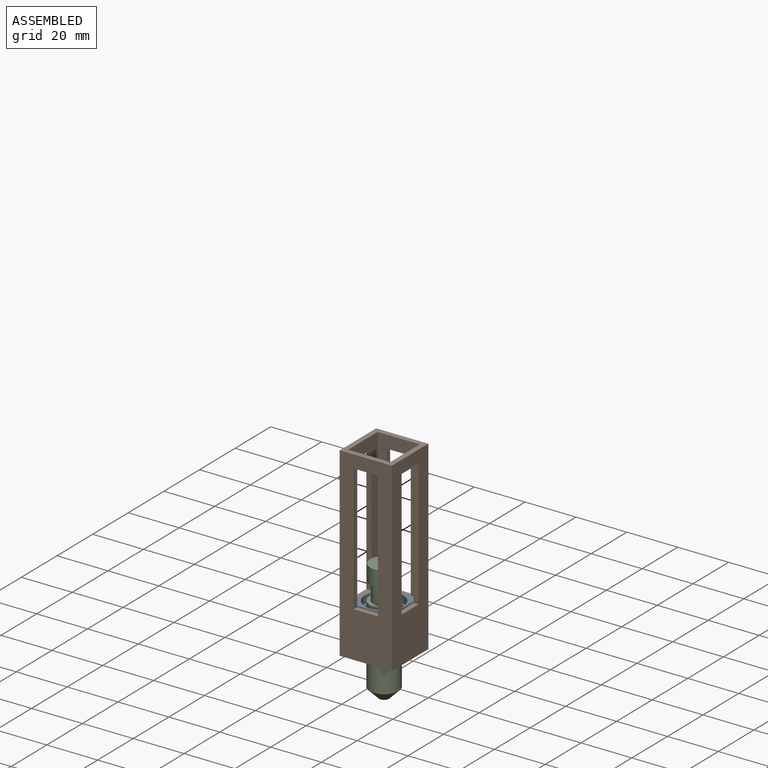
[diagram: assembled view]
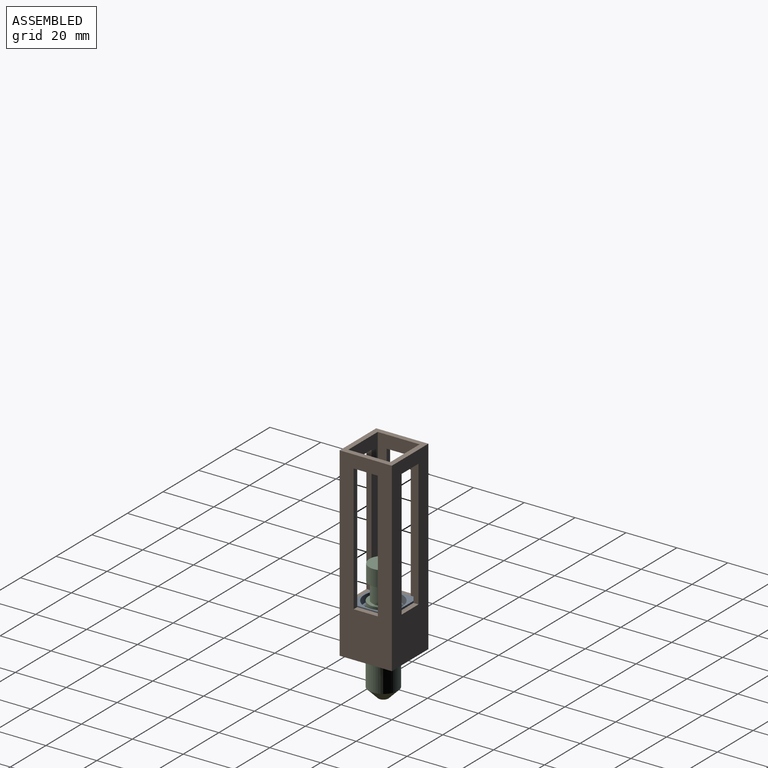
[diagram: assembled view, second angle]
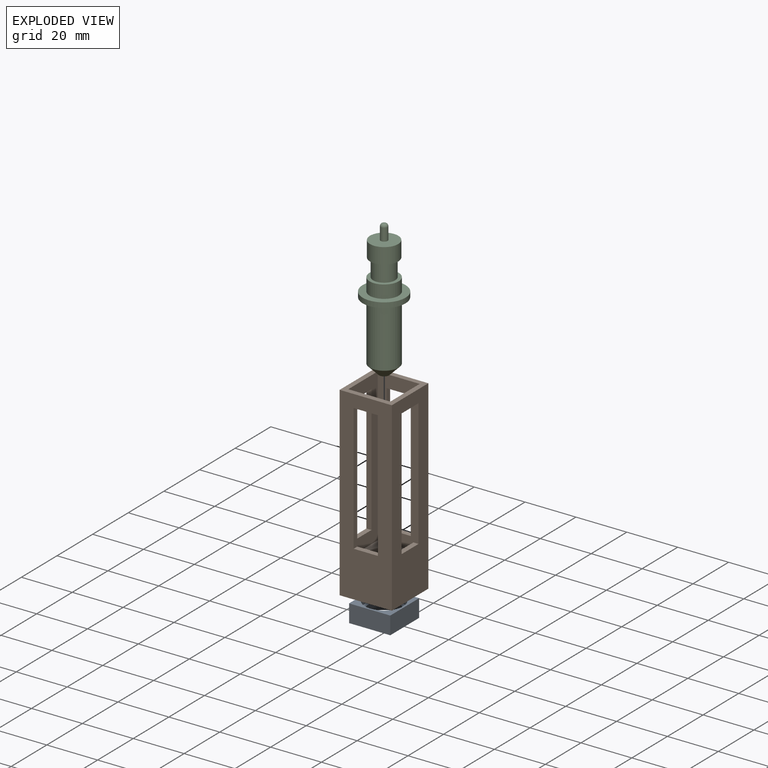
[diagram: exploded view]
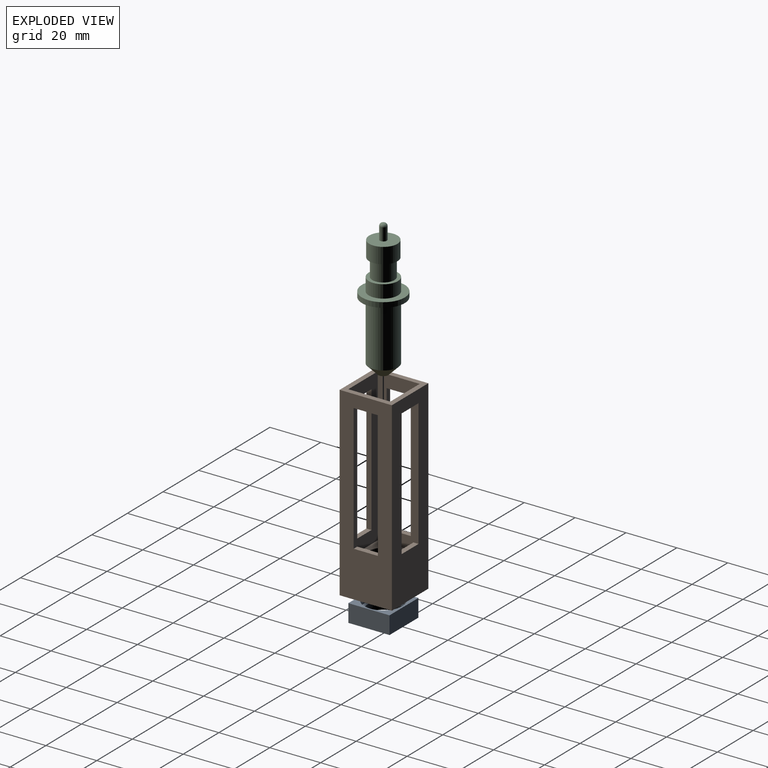
[diagram: exploded view, second angle]
ASSEMBLY  parts=3 mates=2
PART A: 11 faces, bbox 16.2x16.2x7 mm
  f0: cylinder r=6.2mm len=12.4mm, axis (0,0,-1), area 77.9mm2, adj f8,f10
  f1: plane 16.2x7mm, normal (0,-1,0), area 113.4mm2, adj f2,f4,f5,f6
  f2: plane 16.2x7mm, normal (1,0,0), area 113.4mm2, adj f1,f3,f5,f6
  f3: plane 16.2x7mm, normal (0,1,0), area 113.4mm2, adj f2,f4,f5,f6
  f4: plane 16.2x7mm, normal (-1,0,0), area 113.4mm2, adj f1,f3,f5,f6
  f5: plane 16.2x16.2mm, normal (0,0,1), area 85.7mm2, adj f1,f2,f3,f4,f9
  f6: plane 16.2x16.2mm, normal (0,0,-1), area 61.4mm2, adj f1,f2,f3,f4,f7
  f7: cylinder r=8mm len=16mm, axis (0,0,-1), area 100.5mm2, adj f6,f8
  f8: plane 16x16mm, normal (0,0,-1), area 80.3mm2, adj f0,f7
  f9: cylinder r=7.5mm len=15mm, axis (0,0,1), area 141.4mm2, adj f5,f10
  f10: plane 15x15mm, normal (0,0,1), area 56mm2, adj f0,f9
PART B: 28 faces, bbox 20.5x20.5x73 mm
  f0: plane 50x2mm, normal (-1,0,0), area 100mm2, adj f1,f3,f15,f22
  f1: plane 9.5x2mm, normal (0,0,-1), area 19mm2, adj f0,f2,f15,f22
  f2: plane 50x2mm, normal (1,0,0), area 100mm2, adj f1,f3,f15,f22
  f3: plane 9.5x2mm, normal (0,0,1), area 19mm2, adj f0,f2,f15,f22
  f4: plane 50x2mm, normal (0,1,0), area 100mm2, adj f5,f7,f14,f19
  f5: plane 9.5x2mm, normal (0,0,-1), area 19mm2, adj f4,f6,f14,f19
  f6: plane 50x2mm, normal (0,-1,0), area 100mm2, adj f5,f7,f14,f19
  f7: plane 9.5x2mm, normal (0,0,1), area 19mm2, adj f4,f6,f14,f19
  f8: plane 50x2mm, normal (1,0,0), area 100mm2, adj f9,f11,f13,f20
  f9: plane 9.5x2mm, normal (0,0,-1), area 19mm2, adj f8,f10,f13,f20
  f10: plane 50x2mm, normal (-1,0,0), area 100mm2, adj f9,f11,f13,f20
  f11: plane 9.5x2mm, normal (0,0,1), area 19mm2, adj f8,f10,f13,f20
  f12: plane 16.5x16.5mm, normal (0,0,1), area 162.9mm2, adj f18,f19,f20,f21,f22
  f13: plane 73x20.5mm, normal (0,-1,0), area 1021.5mm2, adj f8,f9,f10,f11,f14,f16,f17,f23
  f14: plane 73x20.5mm, normal (1,0,0), area 1021.5mm2, adj f4,f5,f6,f7,f13,f15,f17,f23
  f15: plane 73x20.5mm, normal (0,1,0), area 1021.5mm2, adj f0,f1,f2,f3,f14,f16,f17,f23
  f16: plane 73x20.5mm, normal (-1,0,0), area 1021.5mm2, adj f13,f15,f17,f23,f24,f25,f26,f27
  f17: plane 20.5x20.5mm, normal (0,0,-1), area 310.9mm2, adj f13,f14,f15,f16,f18
  f18: cylinder r=5.9mm len=13mm, axis (0,0,1), area 481.9mm2, adj f12,f17
  f19: plane 60x16.5mm, normal (-1,0,0), area 515mm2, adj f4,f5,f6,f7,f12,f20,f22,f23
  f20: plane 60x16.5mm, normal (0,1,0), area 515mm2, adj f8,f9,f10,f11,f12,f19,f21,f23
  f21: plane 60x16.5mm, normal (1,0,0), area 515mm2, adj f12,f20,f22,f23,f24,f25,f26,f27
  f22: plane 60x16.5mm, normal (0,-1,0), area 515mm2, adj f0,f1,f2,f3,f12,f19,f21,f23
  f23: plane 20.5x20.5mm, normal (0,0,1), area 148mm2, adj f13,f14,f15,f16,f19,f20,f21,f22
  f24: plane 50x2mm, normal (0,-1,0), area 100mm2, adj f16,f21,f25,f27
  f25: plane 9.5x2mm, normal (0,0,-1), area 19mm2, adj f16,f21,f24,f26
  f26: plane 50x2mm, normal (0,1,0), area 100mm2, adj f16,f21,f25,f27
  f27: plane 9.5x2mm, normal (0,0,1), area 19mm2, adj f16,f21,f24,f26
PART C: 15 faces, bbox 16.9x16.9x53.6 mm
  f0: cylinder r=5.72mm len=11.45mm, axis (0,0,-1), area 183.5mm2, adj f1,f3
  f1: plane 11.45x11.45mm, normal (0,0,1), area 43.5mm2, adj f0,f8
  f2: cylinder r=8.43mm len=16.85mm, axis (0,0,-1), area 105.9mm2, adj f3,f4
  f3: plane 16.85x16.85mm, normal (0,0,1), area 120mm2, adj f0,f2
  f4: plane 16.85x16.85mm, normal (0,0,-1), area 120mm2, adj f2,f6
  f5: plane 3.95x3.95mm, normal (0,0,-1), area 12.3mm2, adj f7
  f6: cylinder r=5.72mm len=23.55mm, axis (0,0,-1), area 847.1mm2, adj f4,f7
  f7: cone r=5.72mm half-angle=45deg, axis (0,0,1), area 128.3mm2, adj f5,f6
  f8: cylinder r=4.35mm len=8.7mm, axis (0,0,-1), area 191.3mm2, adj f1,f11
  f9: cylinder r=5.55mm len=11.1mm, axis (0,0,-1), area 216.2mm2, adj f10,f11
  f10: plane 11.1x11.1mm, normal (0,0,1), area 90.8mm2, adj f9,f12
  f11: plane 11.1x11.1mm, normal (0,0,-1), area 37.3mm2, adj f8,f9
  f12: cylinder r=1.38mm len=4.9mm, axis (0,0,-1), area 42.3mm2, adj f10,f14
  f13: plane 0.55x0.55mm, normal (0,0,1), area 0.2mm2, adj f14
  f14: torus R=0.28mm, axis (0,0,1), area 10.6mm2, adj f12,f13
PLACE A t=(-10.1,-10.4,11.47)mm
PLACE B rot(axis=(0,0,1),90deg) t=(-10.25,-10.25,0)mm
PLACE C t=(-10.1,-10.4,-15.83)mm
MATE fastened A.f7 <-> C.f2  axis (0,0,-1) through (-10.1,-10.4,13.47)mm
MATE slider B.f12 <-> A.f6  axis (0,0,1) through (-2,-18.5,13)mm
